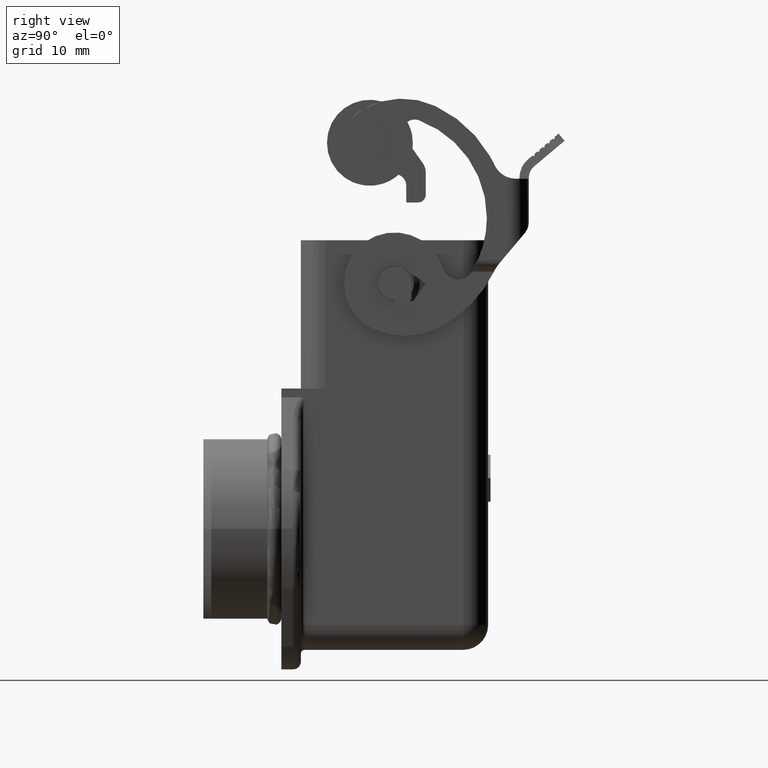
[diagram: clean part render]
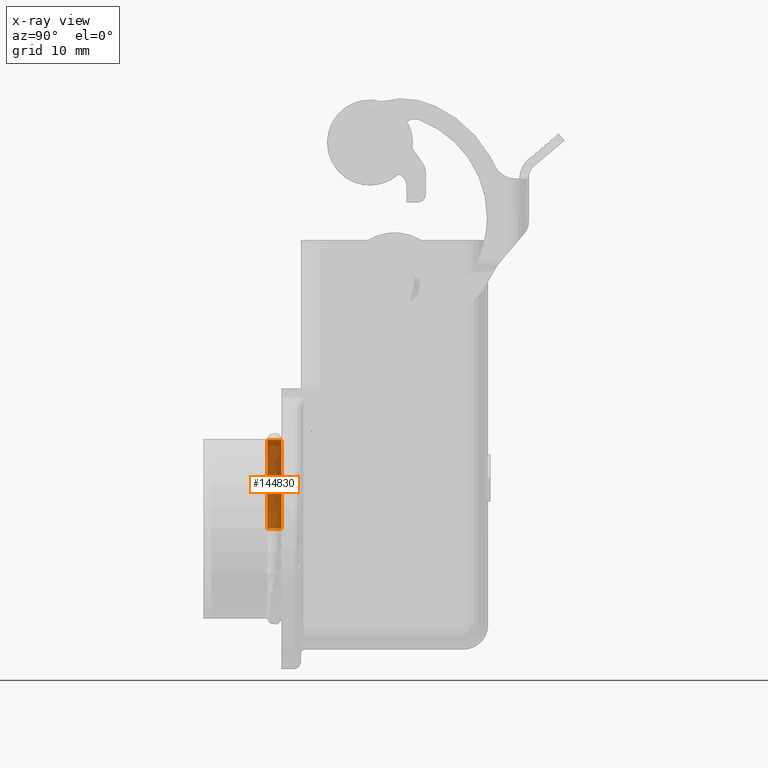
[diagram: x-ray — body ghosted, one internal face saturated and labeled with its STEP entity id]
A machine part, right view, then the same camera in x-ray: the body is ghosted and one INTERNAL B-rep face — a face not visible from any outside direction — is saturated and labeled: STEP entity #144830.
In plain terms, the highlighted cylindrical surface (partial cylindrical patch) has radius 11.4 mm, axis along (0, 1, 0).
Its self-contained STEP definition (entity closure, byte-faithful):
#132800=CARTESIAN_POINT('',(50.7233670000001,25.3561069588412,
0.399895590032148));
#132810=VERTEX_POINT('',#132800);
#135460=CARTESIAN_POINT('',(50.7233670000001,27.1547790411588,
0.399895590032148));
#135470=VERTEX_POINT('',#135460);
#144460=CARTESIAN_POINT('',(50.7721358056639,25.31043985,
-11.0000000938588));
#144470=DIRECTION('',(0.,1.,0.));
#144480=DIRECTION('',(1.,-0.,0.));
#144490=AXIS2_PLACEMENT_3D('',#144460,#144470,#144480);
#144500=CYLINDRICAL_SURFACE('',#144490,11.4);
#144510=CARTESIAN_POINT('',(50.723367,25.3561069588412,0.39989559003215)
);
#144520=DIRECTION('',(0.,1.,0.));
#144530=VECTOR('',#144520,1.);
#144540=LINE('',#144510,#144530);
#144550=EDGE_CURVE('',#132810,#135470,#144540,.T.);
#144560=ORIENTED_EDGE('',*,*,#144550,.T.);
#144570=CARTESIAN_POINT('',(50.7721358056639,25.355443,-11.0000000938588
));
#144580=DIRECTION('',(0.,1.,0.));
#144590=DIRECTION('',(1.,-0.,0.));
#144600=AXIS2_PLACEMENT_3D('',#144570,#144580,#144590);
#144610=CIRCLE('',#144600,11.4);
#144620=CARTESIAN_POINT('',(39.3721358056639,25.355443,-11.0000000938588
));
#144630=VERTEX_POINT('',#144620);
#144640=EDGE_CURVE('',#144630,#132810,#144610,.T.);
#144650=ORIENTED_EDGE('',*,*,#144640,.T.);
#144660=CARTESIAN_POINT('',(39.3721358056639,25.31043985,
-11.0000000938588));
#144670=DIRECTION('',(0.,1.,0.));
#144680=VECTOR('',#144670,1.);
#144690=LINE('',#144660,#144680);
#144700=CARTESIAN_POINT('',(39.3721358056639,27.155443,-11.0000000938588
));
#144710=VERTEX_POINT('',#144700);
#144720=EDGE_CURVE('',#144630,#144710,#144690,.T.);
#144730=ORIENTED_EDGE('',*,*,#144720,.F.);
#144740=CARTESIAN_POINT('',(50.7721358056639,27.155443,-11.0000000938588
));
#144750=DIRECTION('',(0.,1.,0.));
#144760=DIRECTION('',(1.,-0.,0.));
#144770=AXIS2_PLACEMENT_3D('',#144740,#144750,#144760);
#144780=CIRCLE('',#144770,11.4);
#144790=EDGE_CURVE('',#144710,#135470,#144780,.T.);
#144800=ORIENTED_EDGE('',*,*,#144790,.F.);
#144810=EDGE_LOOP('',(#144800,#144730,#144650,#144560));
#144820=FACE_OUTER_BOUND('',#144810,.T.);
#144830=ADVANCED_FACE('',(#144820),#144500,.T.);